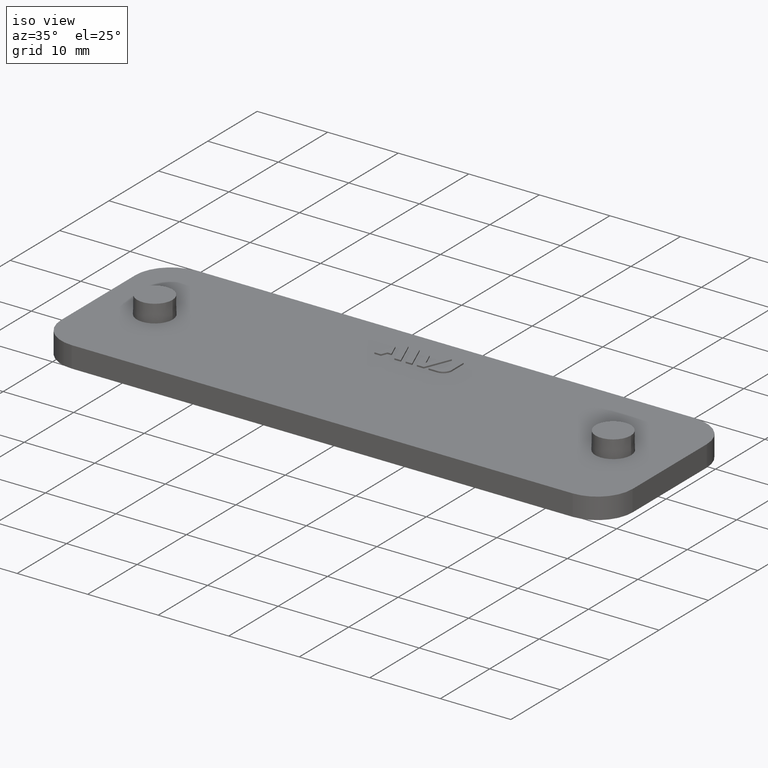
[diagram: clean part render]
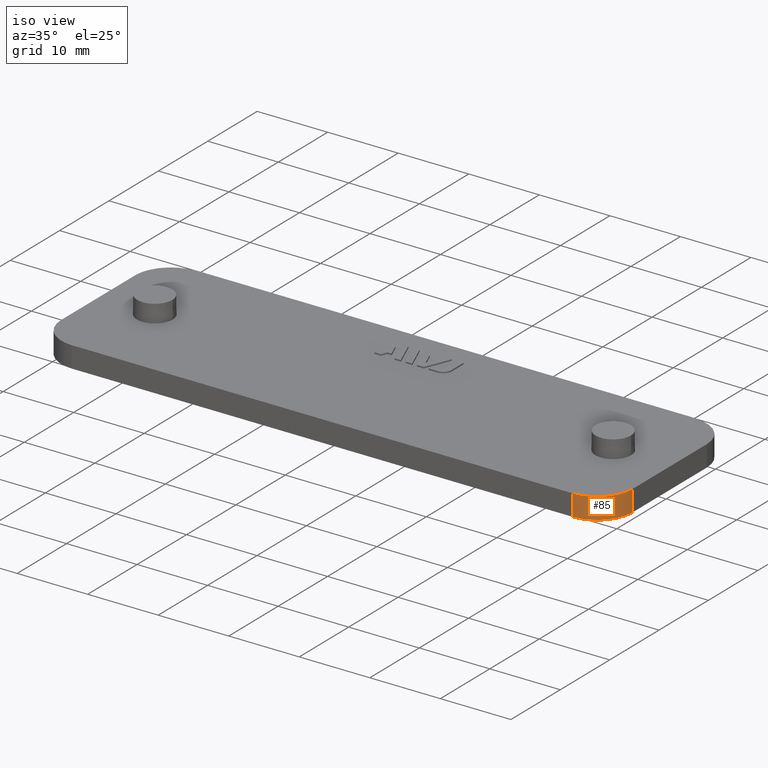
[diagram: same view with one face highlighted and labeled with its STEP entity id]
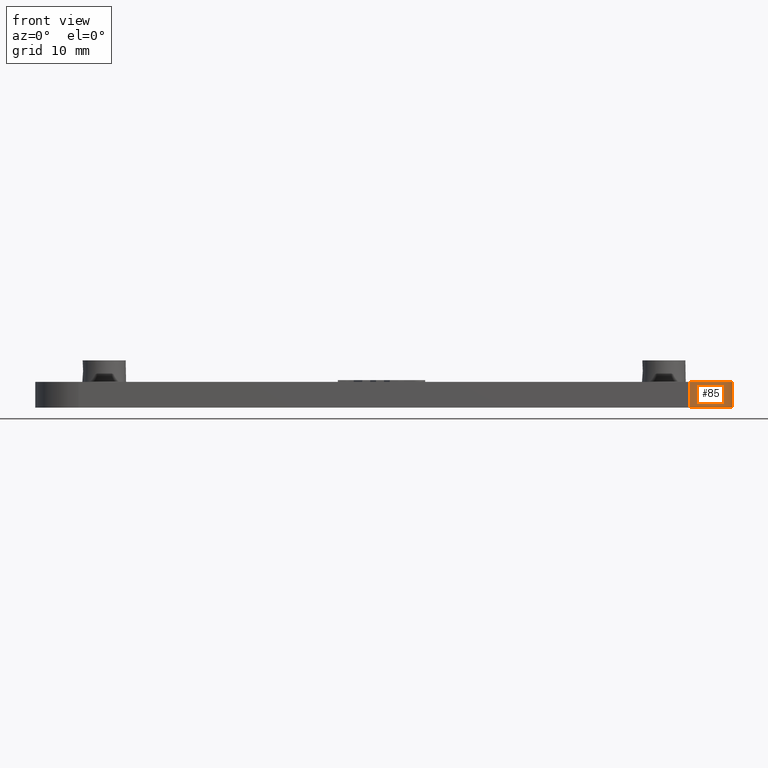
[diagram: same view with one face highlighted and labeled with its STEP entity id]
A machine part, iso view. The second image highlights one B-rep face of the part: STEP entity #85.
A second angle (front view) of the same face is appended — the face is thin or edge-on in the first view.
In plain terms, the highlighted cylindrical surface (partial cylindrical patch) has radius 5 mm, axis along (-0, 0, 1).
Its self-contained STEP definition (entity closure, byte-faithful):
#85 = ADVANCED_FACE( '', ( #166 ), #167, .T. );
#166 = FACE_OUTER_BOUND( '', #299, .T. );
#167 = CYLINDRICAL_SURFACE( '', #300, 5.00000000000000 );
#299 = EDGE_LOOP( '', ( #523, #524, #525, #526 ) );
#300 = AXIS2_PLACEMENT_3D( '', #527, #528, #529 );
#523 = ORIENTED_EDGE( '', *, *, #951, .F. );
#524 = ORIENTED_EDGE( '', *, *, #899, .T. );
#525 = ORIENTED_EDGE( '', *, *, #952, .T. );
#526 = ORIENTED_EDGE( '', *, *, #942, .F. );
#527 = CARTESIAN_POINT( '', ( 35.5000000000000, -7.49999999999989, 84.8970586018549 ) );
#528 = DIRECTION( '', ( -1.60751816480227E-016, 1.81794180051289E-016, 1.00000000000000 ) );
#529 = DIRECTION( '', ( 1.00000000000000, -2.77555756156289E-015, 1.60751816480227E-016 ) );
#899 = EDGE_CURVE( '', #1065, #1063, #1066, .T. );
#942 = EDGE_CURVE( '', #1145, #1147, #1148, .T. );
#951 = EDGE_CURVE( '', #1065, #1145, #1160, .T. );
#952 = EDGE_CURVE( '', #1063, #1147, #1161, .T. );
#1063 = VERTEX_POINT( '', #1324 );
#1065 = VERTEX_POINT( '', #1327 );
#1066 = CIRCLE( '', #1328, 5.00000000000000 );
#1145 = VERTEX_POINT( '', #1443 );
#1147 = VERTEX_POINT( '', #1446 );
#1148 = CIRCLE( '', #1447, 5.00000000000000 );
#1160 = LINE( '', #1465, #1466 );
#1161 = LINE( '', #1467, #1468 );
#1324 = CARTESIAN_POINT( '', ( 35.5000000000000, -12.5000000000000, 2.99999999999999 ) );
#1327 = CARTESIAN_POINT( '', ( 40.5000000000000, -7.49999999999992, 2.99999999999999 ) );
#1328 = AXIS2_PLACEMENT_3D( '', #1681, #1682, #1683 );
#1443 = CARTESIAN_POINT( '', ( 40.5000000000000, -7.49999999999992, -1.34185604251311E-014 ) );
#1446 = CARTESIAN_POINT( '', ( 35.5000000000000, -12.4999999999999, 1.46431667789534E-014 ) );
#1447 = AXIS2_PLACEMENT_3D( '', #1736, #1737, #1738 );
#1465 = CARTESIAN_POINT( '', ( 40.5000000000000, -7.49999999999989, 84.8970586018549 ) );
#1466 = VECTOR( '', #1751, 1000.00000000000 );
#1467 = CARTESIAN_POINT( '', ( 35.5000000000000, -12.4999999999999, 84.8970586018549 ) );
#1468 = VECTOR( '', #1752, 1000.00000000000 );
#1681 = CARTESIAN_POINT( '', ( 35.5000000000000, -7.49999999999991, 2.99999999999999 ) );
#1682 = DIRECTION( '', ( 0.000000000000000, -6.12303176911189E-017, -1.00000000000000 ) );
#1683 = DIRECTION( '', ( 0.000000000000000, 1.00000000000000, -6.12303176911189E-017 ) );
#1736 = CARTESIAN_POINT( '', ( 35.5000000000000, -7.49999999999991, -1.34185604251311E-014 ) );
#1737 = DIRECTION( '', ( 0.000000000000000, -6.12303176911189E-017, -1.00000000000000 ) );
#1738 = DIRECTION( '', ( 0.000000000000000, 1.00000000000000, -6.12303176911189E-017 ) );
#1751 = DIRECTION( '', ( 1.60751816480227E-016, -1.81794180051289E-016, -1.00000000000000 ) );
#1752 = DIRECTION( '', ( 1.60751816480227E-016, -1.81794180051289E-016, -1.00000000000000 ) );